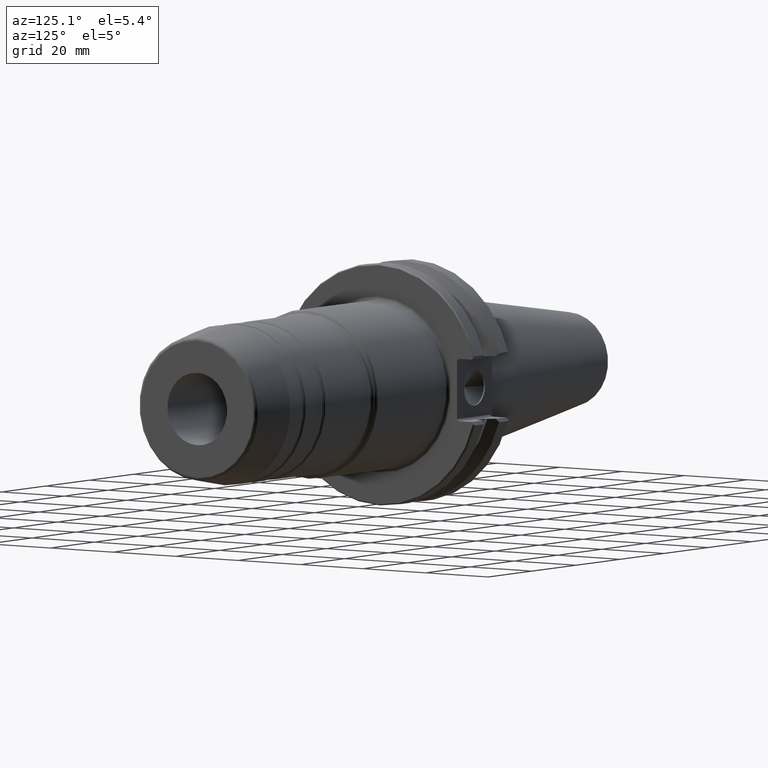
[diagram: clean part render]
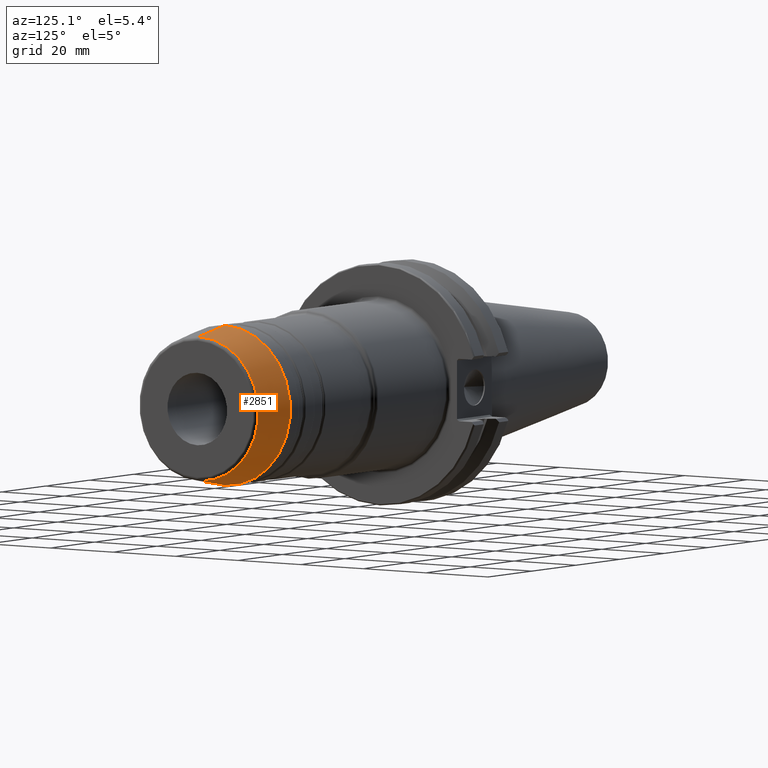
[diagram: same view with one face highlighted and labeled with its STEP entity id]
A machine part, auxiliary view. The second image highlights one B-rep face of the part: STEP entity #2851.
In plain terms, the highlighted conical surface has half-angle 10 deg.
Its self-contained STEP definition (entity closure, byte-faithful):
#630=CARTESIAN_POINT('',(8.914817999684E1,0.E0,0.E0));
#631=DIRECTION('',(1.E0,0.E0,0.E0));
#632=DIRECTION('',(0.E0,0.E0,-1.E0));
#633=AXIS2_PLACEMENT_3D('',#630,#631,#632);
#635=CARTESIAN_POINT('',(1.007986481777E2,0.E0,0.E0));
#636=DIRECTION('',(1.E0,0.E0,0.E0));
#637=DIRECTION('',(0.E0,0.E0,-1.E0));
#638=AXIS2_PLACEMENT_3D('',#635,#636,#637);
#640=DIRECTION('',(-9.848077530122E-1,0.E0,-1.736481776669E-1));
#641=VECTOR('',#640,1.183019543174E1);
#642=CARTESIAN_POINT('',(1.007986481777E2,0.E0,-1.894570812184E1));
#643=LINE('',#642,#641);
#644=DIRECTION('',(-9.848077530122E-1,0.E0,1.736481776669E-1));
#645=VECTOR('',#644,1.183019543174E1);
#646=CARTESIAN_POINT('',(1.007986481777E2,0.E0,1.894570812184E1));
#647=LINE('',#646,#645);
#1759=CARTESIAN_POINT('',(1.007986481777E2,0.E0,-1.894570812184E1));
#1761=VERTEX_POINT('',#1759);
#1762=CARTESIAN_POINT('',(8.914817999684E1,0.E0,-2.1E1));
#1763=VERTEX_POINT('',#1762);
#1821=CARTESIAN_POINT('',(1.007986481777E2,0.E0,1.894570812184E1));
#1823=VERTEX_POINT('',#1821);
#1824=CARTESIAN_POINT('',(8.914817999684E1,0.E0,2.1E1));
#1825=VERTEX_POINT('',#1824);
#2837=CARTESIAN_POINT('',(9.497341408725E1,0.E0,0.E0));
#2838=DIRECTION('',(-1.E0,0.E0,0.E0));
#2839=DIRECTION('',(0.E0,0.E0,-1.E0));
#2840=AXIS2_PLACEMENT_3D('',#2837,#2838,#2839);
#2841=CONICAL_SURFACE('',#2840,1.997285406092E1,9.999999999997E0);
#2843=ORIENTED_EDGE('',*,*,#2842,.F.);
#2845=ORIENTED_EDGE('',*,*,#2844,.T.);
#2847=ORIENTED_EDGE('',*,*,#2846,.T.);
#2848=ORIENTED_EDGE('',*,*,#2830,.F.);
#2849=EDGE_LOOP('',(#2843,#2845,#2847,#2848));
#2850=FACE_OUTER_BOUND('',#2849,.F.);
#2851=ADVANCED_FACE('',(#2850),#2841,.T.);
#634=CIRCLE('',#633,2.1E1);
#639=CIRCLE('',#638,1.894570812184E1);
#2830=EDGE_CURVE('',#1763,#1825,#634,.T.);
#2842=EDGE_CURVE('',#1761,#1763,#643,.T.);
#2844=EDGE_CURVE('',#1761,#1823,#639,.T.);
#2846=EDGE_CURVE('',#1823,#1825,#647,.T.);